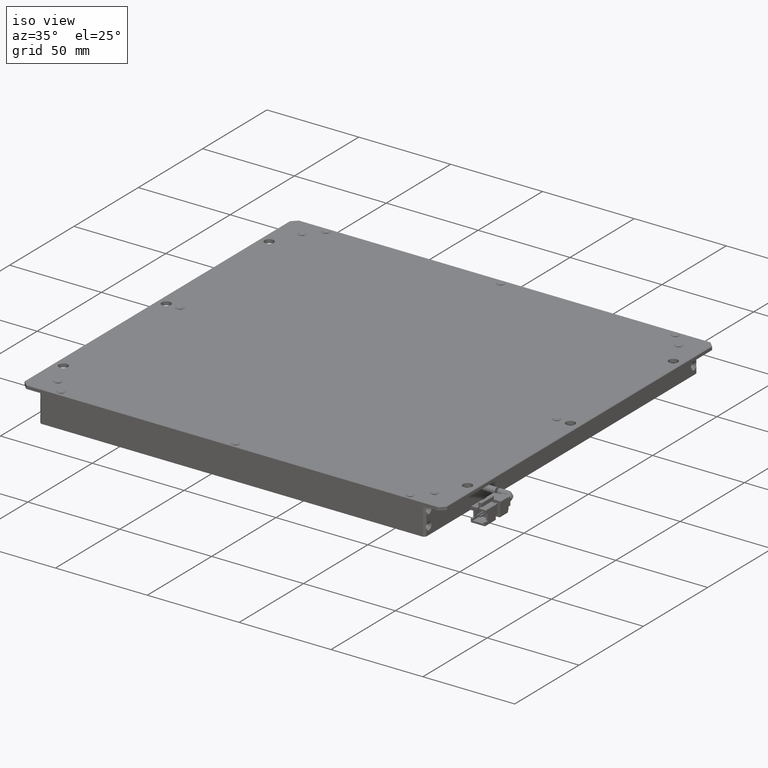
[diagram: clean part render]
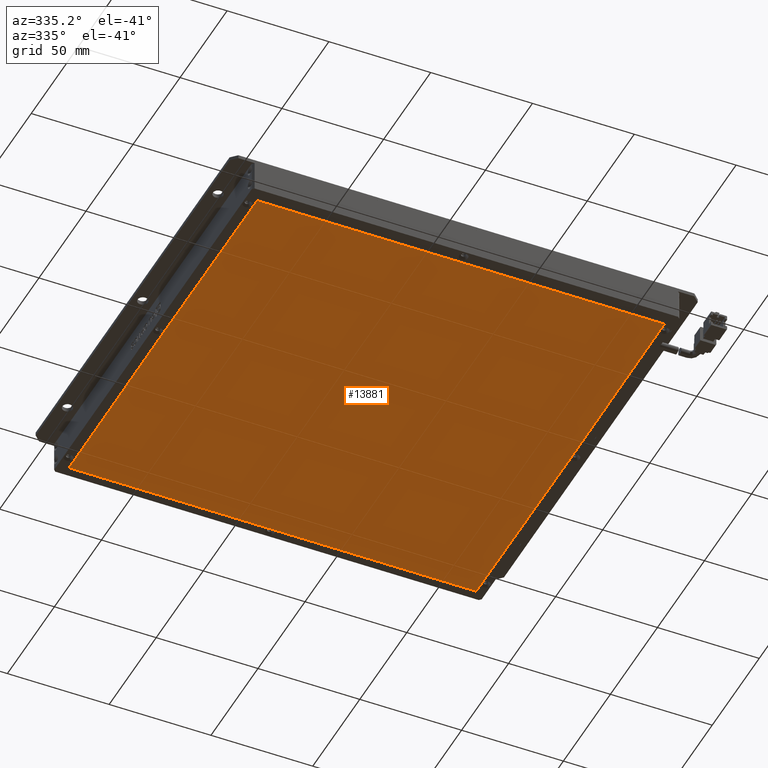
[diagram: tour spotlight — one face highlighted and labeled with its STEP entity id]
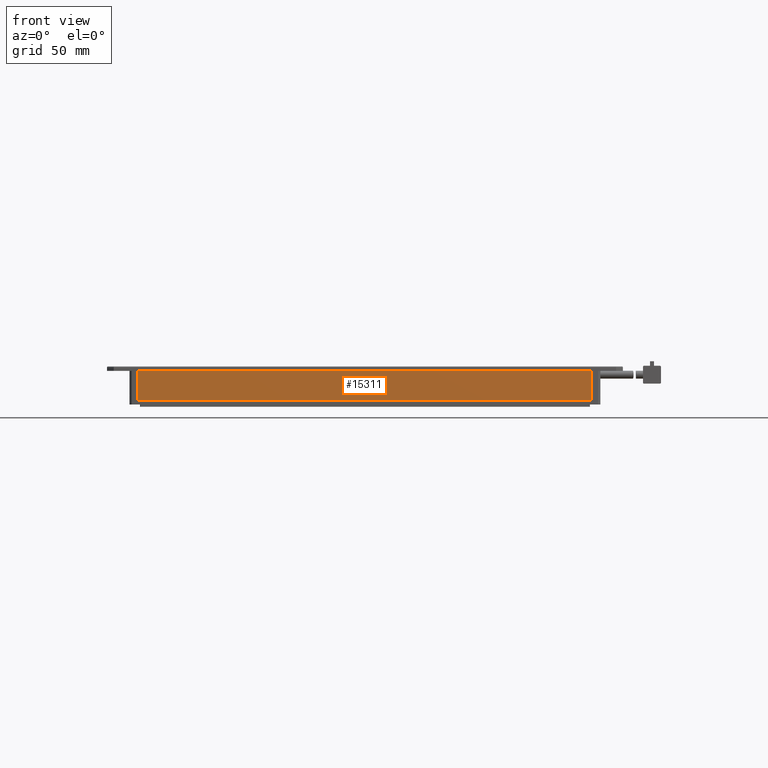
[diagram: tour spotlight — one face highlighted and labeled with its STEP entity id]
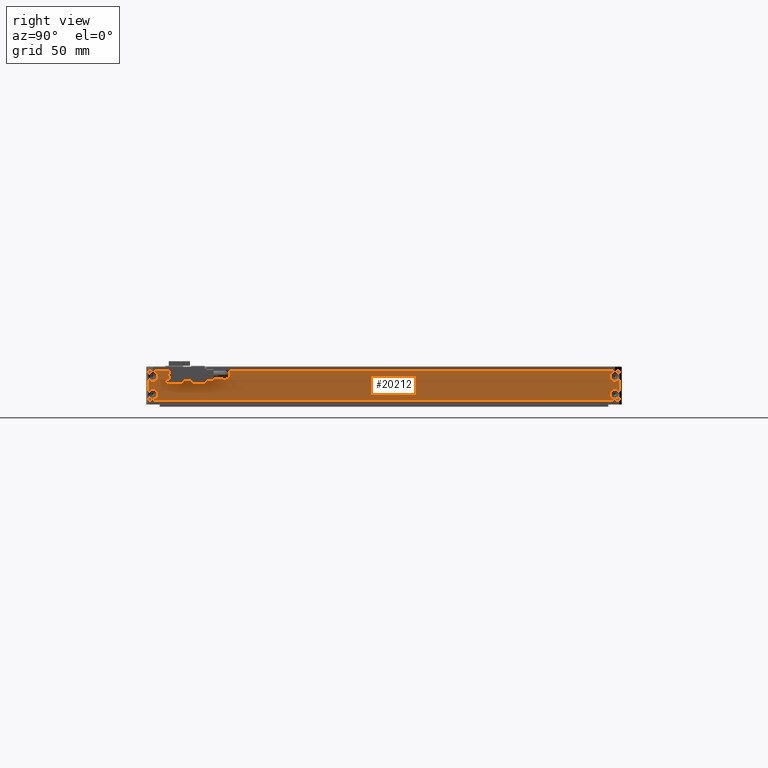
[diagram: tour spotlight — one face highlighted and labeled with its STEP entity id]
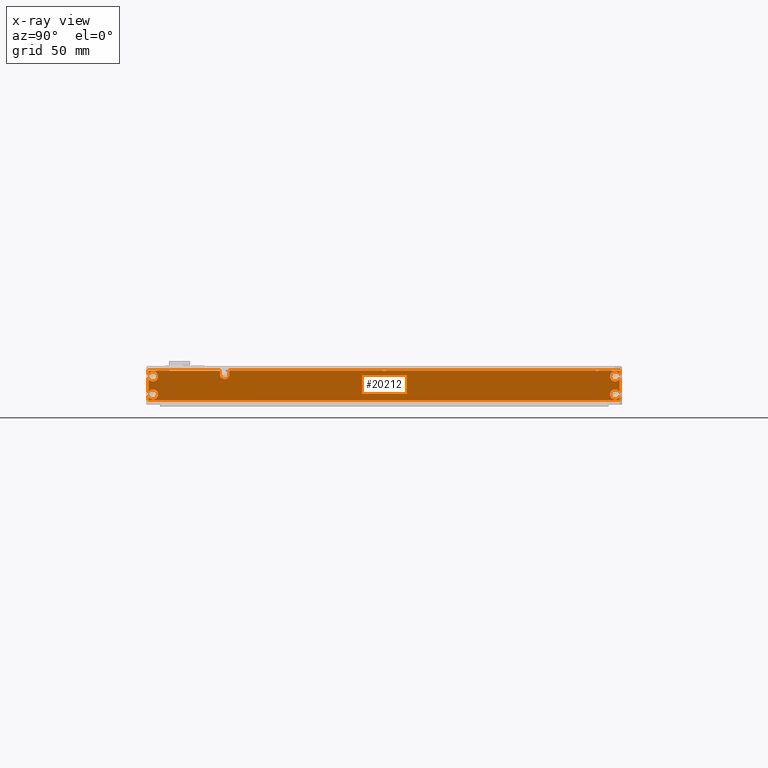
[diagram: x-ray of the same camera — body ghosted, this tour face saturated]
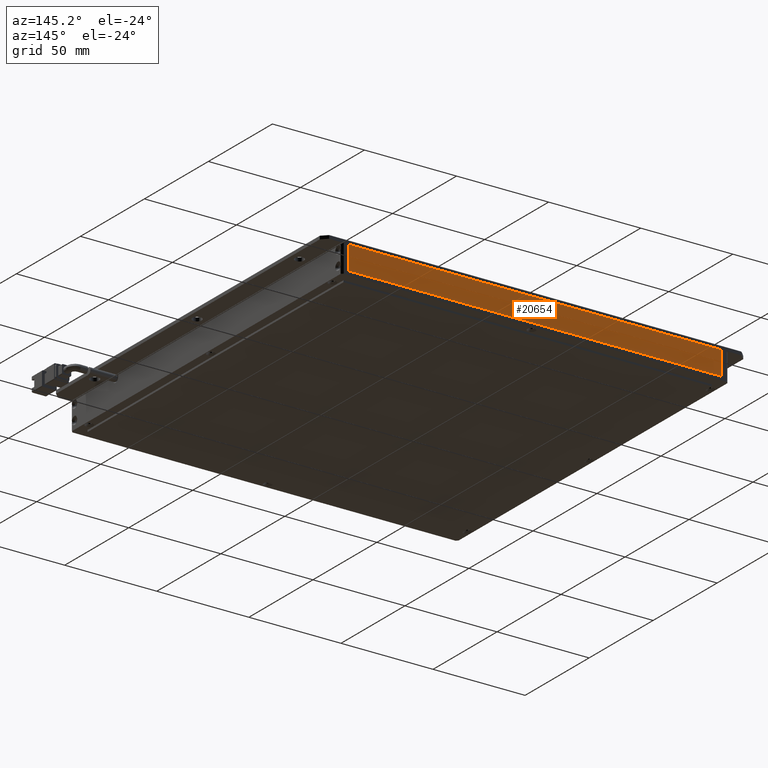
[diagram: tour spotlight — one face highlighted and labeled with its STEP entity id]
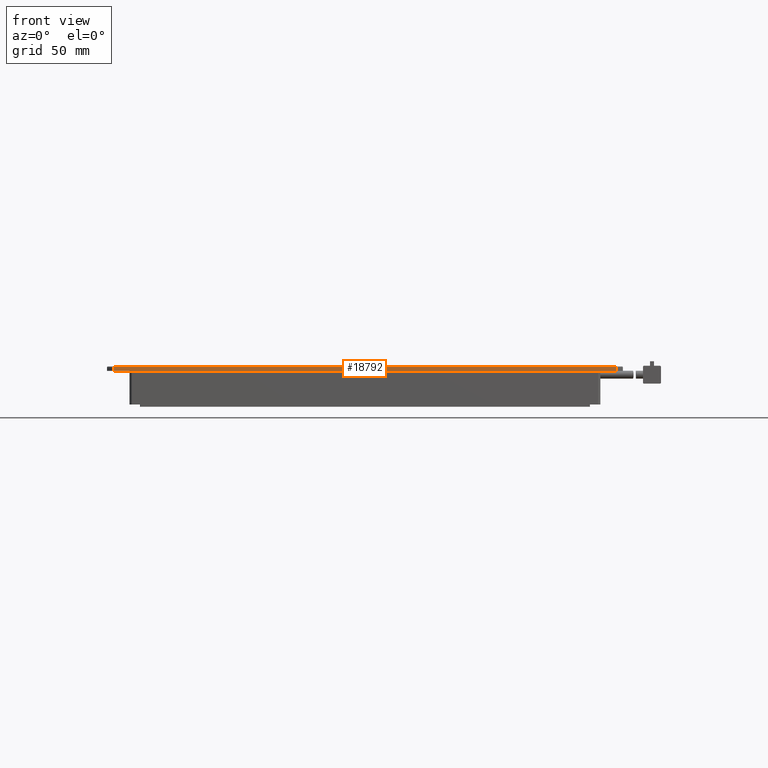
[diagram: tour spotlight — one face highlighted and labeled with its STEP entity id]
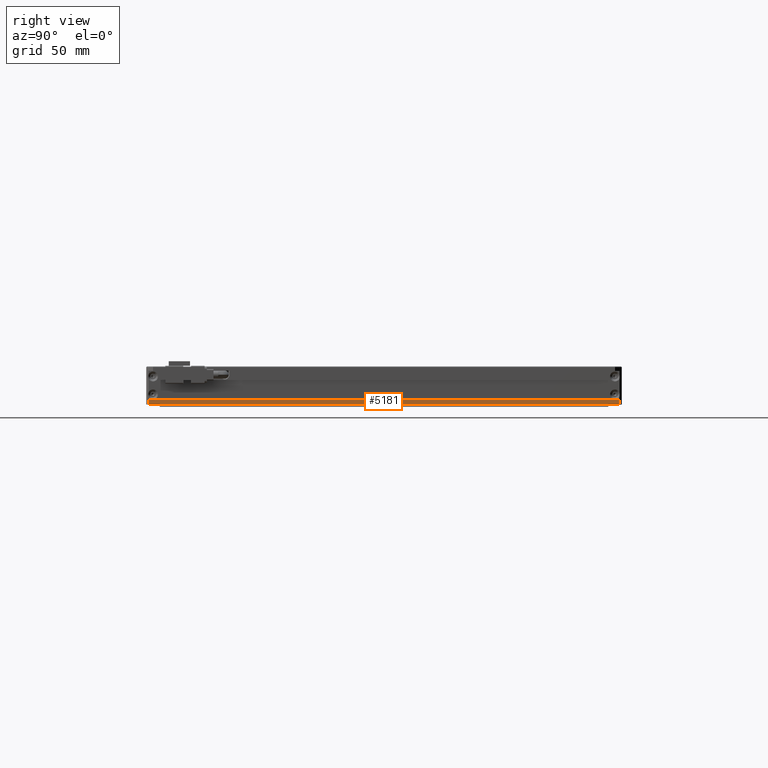
[diagram: tour spotlight — one face highlighted and labeled with its STEP entity id]
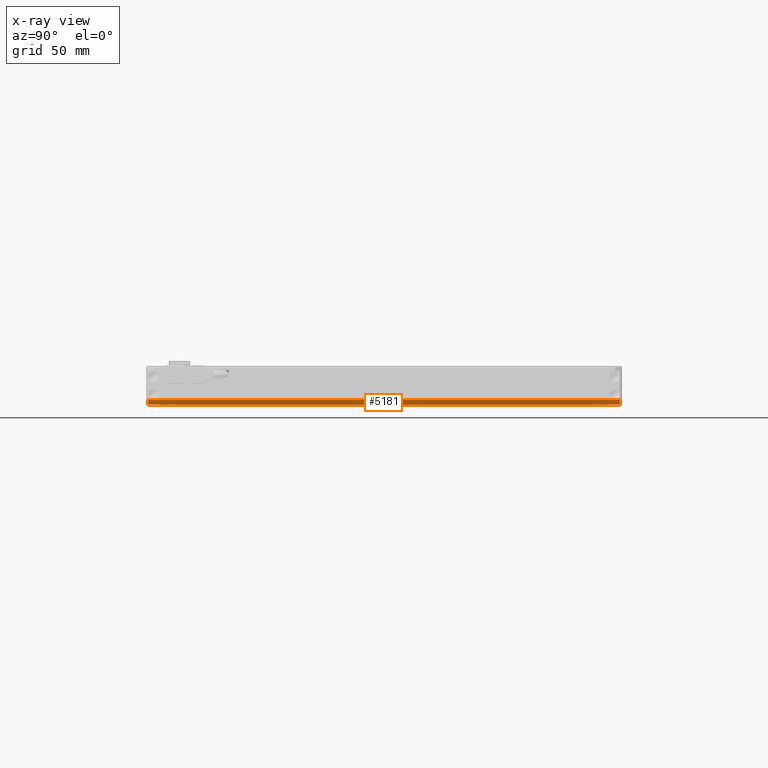
[diagram: x-ray of the same camera — body ghosted, this tour face saturated]
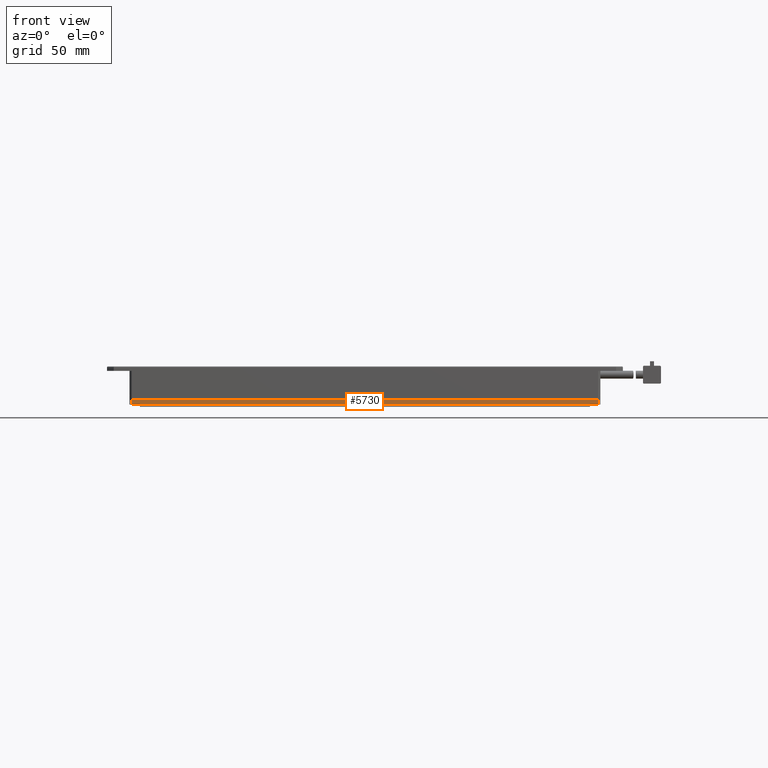
[diagram: tour spotlight — one face highlighted and labeled with its STEP entity id]
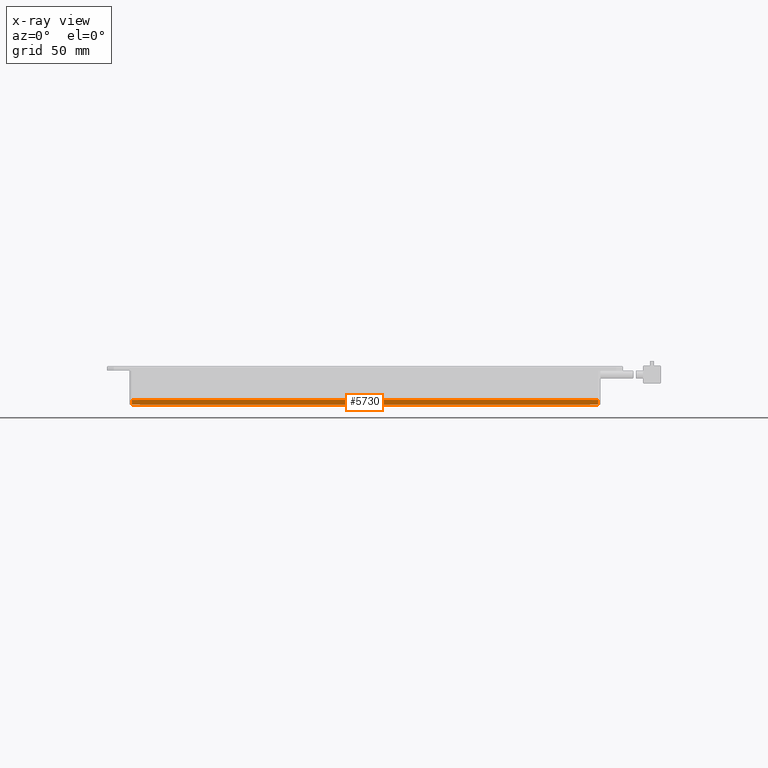
[diagram: x-ray of the same camera — body ghosted, this tour face saturated]
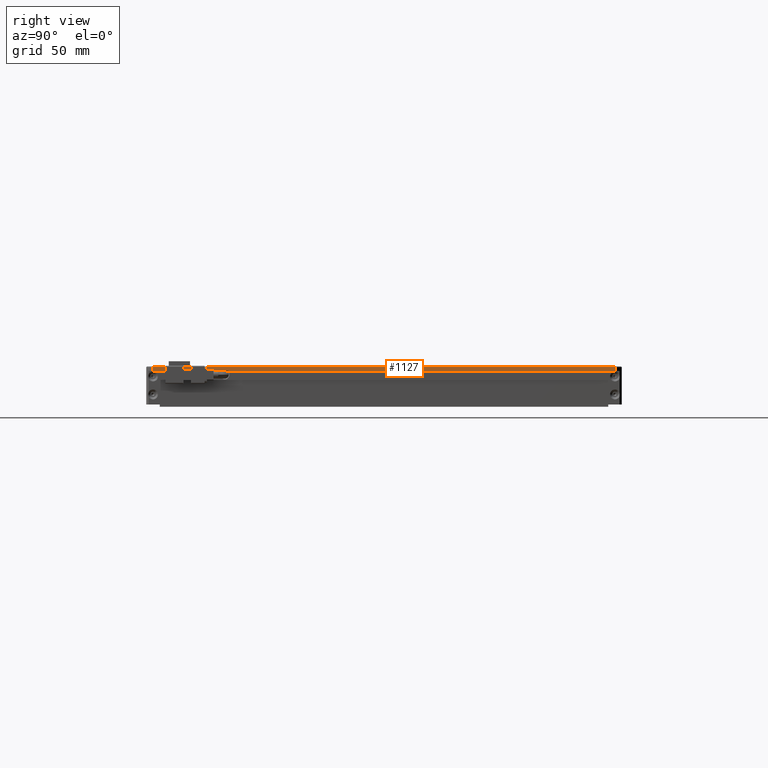
[diagram: tour spotlight — one face highlighted and labeled with its STEP entity id]
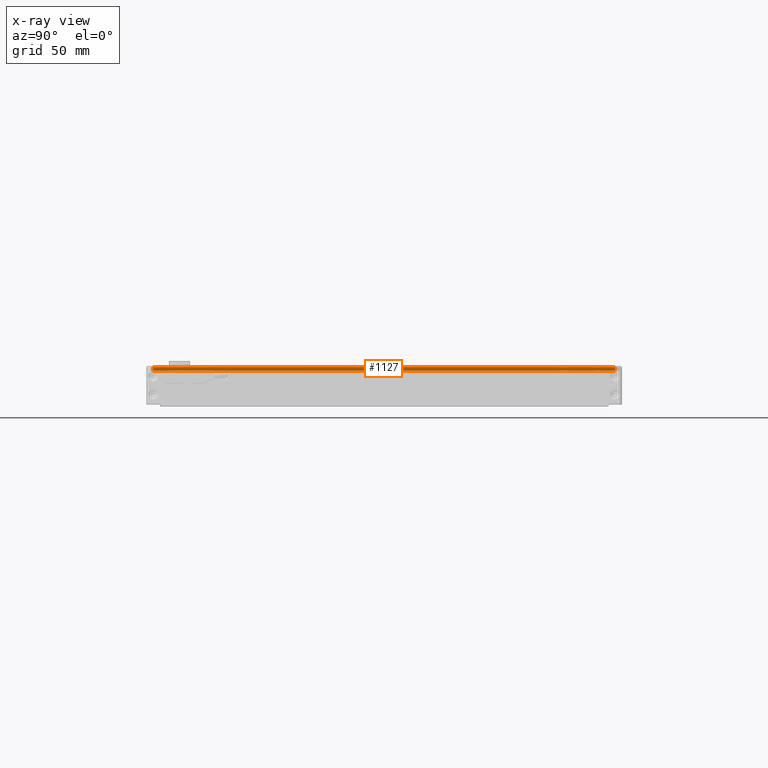
[diagram: x-ray of the same camera — body ghosted, this tour face saturated]
A machine part: a face-by-face anatomy tour. The part has 522 B-rep faces; the first image is the clean iso view, then the 8 largest visible faces are spotlighted one at a time (largest first), each with its STEP entity span.

Face 1 — auxiliary view, entity #13881. In plain terms, the highlighted planar face has unit normal (0, 0, -1).
Definition (entity closure, byte-faithful):
#748 = DIRECTION ( 'NONE',  ( 0.002999986500133816800, 0.9999955000303746300, -0.0000000000000000000 ) ) ;
#1051 = DIRECTION ( 'NONE',  ( -0.002999986500133812500, 0.9999955000303746300, 0.0000000000000000000 ) ) ;
#1287 = VECTOR ( 'NONE', #1051, 1000.000000000000200 ) ;
#1388 = AXIS2_PLACEMENT_3D ( 'NONE', #3017, #16819, #2941 ) ;
#1842 = LINE ( 'NONE', #10003, #18468 ) ;
#2017 = VERTEX_POINT ( 'NONE', #3759 ) ;
#2941 = DIRECTION ( 'NONE',  ( -1.000000000000000000, 0.0000000000000000000, -0.0000000000000000000 ) ) ;
#3017 = CARTESIAN_POINT ( 'NONE',  ( 0.0000000000000000000, 0.0000000000000000000, -16.00000000002364300 ) ) ;
#3759 = CARTESIAN_POINT ( 'NONE',  ( -81.33424941752386400, -133.3787539827808100, -16.00000000002364300 ) ) ;
#4431 = ORIENTED_EDGE ( 'NONE', *, *, #21776, .T. ) ;
#4690 = VERTEX_POINT ( 'NONE', #17969 ) ;
#6302 = CARTESIAN_POINT ( 'NONE',  ( -81.33424941752386400, -133.3787539827808100, -16.00000000002364300 ) ) ;
#6414 = EDGE_CURVE ( 'NONE', #2017, #9636, #19538, .T. ) ;
#6419 = LINE ( 'NONE', #17474, #20843 ) ;
#6910 = DIRECTION ( 'NONE',  ( -1.000000000000000000, -5.551115123125782700E-016, 0.0000000000000000000 ) ) ;
#8307 = EDGE_CURVE ( 'NONE', #21700, #4690, #13935, .T. ) ;
#8357 = DIRECTION ( 'NONE',  ( 1.000000000000000000, 6.938893903907228400E-017, -0.0000000000000000000 ) ) ;
#9072 = EDGE_CURVE ( 'NONE', #15631, #11918, #1842, .T. ) ;
#9636 = VERTEX_POINT ( 'NONE', #11572 ) ;
#9914 = PLANE ( 'NONE',  #1388 ) ;
#10003 = CARTESIAN_POINT ( 'NONE',  ( 118.6657505824761500, 66.62124601721919200, -16.00000000002364300 ) ) ;
#10243 = ORIENTED_EDGE ( 'NONE', *, *, #13722, .T. ) ;
#10267 = VECTOR ( 'NONE', #19476, 1000.000000000000200 ) ;
#10704 = FACE_OUTER_BOUND ( 'NONE', #18050, .T. ) ;
#10982 = VECTOR ( 'NONE', #748, 1000.000000000000100 ) ;
#11572 = CARTESIAN_POINT ( 'NONE',  ( -81.63424941752812500, -33.37875398278074400, -16.00000000002364300 ) ) ;
#11893 = LINE ( 'NONE', #15959, #10267 ) ;
#11918 = VERTEX_POINT ( 'NONE', #17717 ) ;
#13300 = CARTESIAN_POINT ( 'NONE',  ( -81.33424941752386400, 66.62124601721917800, -16.00000000002364300 ) ) ;
#13722 = EDGE_CURVE ( 'NONE', #9636, #15631, #20743, .T. ) ;
#13881 = ADVANCED_FACE ( 'NONE', ( #10704 ), #9914, .T. ) ;
#13935 = LINE ( 'NONE', #19379, #20714 ) ;
#14157 = CARTESIAN_POINT ( 'NONE',  ( 118.9657505824804200, -33.37875398278068700, -16.00000000002364300 ) ) ;
#15365 = ORIENTED_EDGE ( 'NONE', *, *, #9072, .T. ) ;
#15631 = VERTEX_POINT ( 'NONE', #13300 ) ;
#15959 = CARTESIAN_POINT ( 'NONE',  ( 118.6657505824761500, 66.62124601721919200, -16.00000000002364300 ) ) ;
#16013 = DIRECTION ( 'NONE',  ( -0.002999986500133813800, -0.9999955000303746300, -0.0000000000000000000 ) ) ;
#16819 = DIRECTION ( 'NONE',  ( 0.0000000000000000000, 0.0000000000000000000, -1.000000000000000000 ) ) ;
#17284 = ORIENTED_EDGE ( 'NONE', *, *, #8307, .T. ) ;
#17474 = CARTESIAN_POINT ( 'NONE',  ( 118.6657505824761500, -133.3787539827806900, -16.00000000002364300 ) ) ;
#17717 = CARTESIAN_POINT ( 'NONE',  ( 118.6657505824761500, 66.62124601721919200, -16.00000000002364300 ) ) ;
#17913 = ORIENTED_EDGE ( 'NONE', *, *, #18400, .T. ) ;
#17969 = CARTESIAN_POINT ( 'NONE',  ( 118.6657505824761500, -133.3787539827806900, -16.00000000002364300 ) ) ;
#18050 = EDGE_LOOP ( 'NONE', ( #10243, #15365, #4431, #17284, #17913, #20233 ) ) ;
#18123 = CARTESIAN_POINT ( 'NONE',  ( -81.33424941752386400, 66.62124601721917800, -16.00000000002364300 ) ) ;
#18400 = EDGE_CURVE ( 'NONE', #4690, #2017, #6419, .T. ) ;
#18468 = VECTOR ( 'NONE', #8357, 1000.000000000000000 ) ;
#19379 = CARTESIAN_POINT ( 'NONE',  ( 118.6657505824761500, -133.3787539827806900, -16.00000000002364300 ) ) ;
#19476 = DIRECTION ( 'NONE',  ( 0.002999986500133818500, -0.9999955000303746300, 0.0000000000000000000 ) ) ;
#19538 = LINE ( 'NONE', #6302, #1287 ) ;
#20233 = ORIENTED_EDGE ( 'NONE', *, *, #6414, .T. ) ;
#20714 = VECTOR ( 'NONE', #16013, 1000.000000000000200 ) ;
#20743 = LINE ( 'NONE', #18123, #10982 ) ;
#20843 = VECTOR ( 'NONE', #6910, 1000.000000000000000 ) ;
#21700 = VERTEX_POINT ( 'NONE', #14157 ) ;
#21776 = EDGE_CURVE ( 'NONE', #11918, #21700, #11893, .T. ) ;

Face 2 — front view, entity #15311. In plain terms, the highlighted planar face has unit normal (-0, 1, 0).
Definition (entity closure, byte-faithful):
#91 = ORIENTED_EDGE ( 'NONE', *, *, #19592, .F. ) ;
#335 = EDGE_LOOP ( 'NONE', ( #91, #18693, #17694, #1340 ) ) ;
#486 = DIRECTION ( 'NONE',  ( -1.243375699538492300E-016, -1.545983130202835100E-032, 1.000000000000000000 ) ) ;
#1340 = ORIENTED_EDGE ( 'NONE', *, *, #10786, .F. ) ;
#1426 = CARTESIAN_POINT ( 'NONE',  ( 119.8157505824761400, -139.3787539827808600, -13.00000000002364900 ) ) ;
#1506 = CARTESIAN_POINT ( 'NONE',  ( 119.8157505824761400, -139.3787539827808600, -2.364081153061192700E-011 ) ) ;
#1997 = EDGE_CURVE ( 'NONE', #4922, #18290, #9721, .T. ) ;
#2987 = LINE ( 'NONE', #5684, #15258 ) ;
#3705 = DIRECTION ( 'NONE',  ( 1.000000000000000000, 1.243375699538492300E-016, 1.243375699538492300E-016 ) ) ;
#4364 = VECTOR ( 'NONE', #486, 1000.000000000000000 ) ;
#4922 = VERTEX_POINT ( 'NONE', #1506 ) ;
#5299 = CARTESIAN_POINT ( 'NONE',  ( 119.8157505824761400, -139.3787539827808600, -6.500000000023631800 ) ) ;
#5506 = CARTESIAN_POINT ( 'NONE',  ( -82.48424941752387000, -139.3787539827808600, -6.500000000023656600 ) ) ;
#5539 = CARTESIAN_POINT ( 'NONE',  ( -82.48424941752387000, -139.3787539827808600, -13.00000000002365200 ) ) ;
#5684 = CARTESIAN_POINT ( 'NONE',  ( 18.66575058247610400, -139.3787539827808600, -13.00000000002365900 ) ) ;
#7874 = VERTEX_POINT ( 'NONE', #5539 ) ;
#7978 = VERTEX_POINT ( 'NONE', #9678 ) ;
#8803 = DIRECTION ( 'NONE',  ( 1.000000000000000000, 1.243375699538492300E-016, 1.243375699538492300E-016 ) ) ;
#8963 = LINE ( 'NONE', #14343, #15468 ) ;
#8992 = DIRECTION ( 'NONE',  ( 1.243375699538492300E-016, 1.545983130202835100E-032, -1.000000000000000000 ) ) ;
#9061 = LINE ( 'NONE', #5506, #4364 ) ;
#9678 = CARTESIAN_POINT ( 'NONE',  ( -82.48424941752387000, -139.3787539827808600, -2.364688306277784600E-011 ) ) ;
#9721 = LINE ( 'NONE', #5299, #22211 ) ;
#10786 = EDGE_CURVE ( 'NONE', #7874, #7978, #9061, .T. ) ;
#10961 = DIRECTION ( 'NONE',  ( -1.000000000000000000, -1.243375699538492300E-016, -1.243375699538492300E-016 ) ) ;
#12245 = AXIS2_PLACEMENT_3D ( 'NONE', #14159, #19252, #3705 ) ;
#14078 = PLANE ( 'NONE',  #12245 ) ;
#14159 = CARTESIAN_POINT ( 'NONE',  ( 18.66575058247610400, -139.3787539827808600, -6.500000000023645100 ) ) ;
#14228 = FACE_OUTER_BOUND ( 'NONE', #335, .T. ) ;
#14343 = CARTESIAN_POINT ( 'NONE',  ( 18.66575058247610400, -139.3787539827808600, -2.363473999844600800E-011 ) ) ;
#15258 = VECTOR ( 'NONE', #10961, 1000.000000000000000 ) ;
#15311 = ADVANCED_FACE ( 'NONE', ( #14228 ), #14078, .F. ) ;
#15468 = VECTOR ( 'NONE', #8803, 1000.000000000000000 ) ;
#16428 = EDGE_CURVE ( 'NONE', #7978, #4922, #8963, .T. ) ;
#17694 = ORIENTED_EDGE ( 'NONE', *, *, #16428, .F. ) ;
#18290 = VERTEX_POINT ( 'NONE', #1426 ) ;
#18693 = ORIENTED_EDGE ( 'NONE', *, *, #1997, .F. ) ;
#19252 = DIRECTION ( 'NONE',  ( -1.243375699538492300E-016, 1.000000000000000000, 0.0000000000000000000 ) ) ;
#19592 = EDGE_CURVE ( 'NONE', #18290, #7874, #2987, .T. ) ;
#22211 = VECTOR ( 'NONE', #8992, 1000.000000000000000 ) ;

Face 3 — right view, entity #20212. An x-ray twin of the same camera follows (body ghosted, this face saturated) — the face is partly hidden behind the body. In plain terms, the highlighted planar face has unit normal (1, 0, 0).
Definition (entity closure, byte-faithful):
#54 = CARTESIAN_POINT ( 'NONE',  ( 123.6657505824781400, 71.62124601721910700, -9.583484861012650000 ) ) ;
#134 = CARTESIAN_POINT ( 'NONE',  ( 123.6657505824761400, -106.4787539827807900, -6.500000000023630900 ) ) ;
#227 = CARTESIAN_POINT ( 'NONE',  ( 123.6657505824761500, -138.3787539827808400, -6.500000000023630900 ) ) ;
#284 = EDGE_CURVE ( 'NONE', #2123, #21424, #13120, .T. ) ;
#661 = VERTEX_POINT ( 'NONE', #9431 ) ;
#671 = DIRECTION ( 'NONE',  ( 0.0000000000000000000, -1.000000000000000000, 3.942553354448312000E-015 ) ) ;
#707 = CARTESIAN_POINT ( 'NONE',  ( 123.6657505824761500, -138.3787539827808400, -2.364254625408790400E-011 ) ) ;
#783 = LINE ( 'NONE', #16973, #3746 ) ;
#785 = LINE ( 'NONE', #11807, #9534 ) ;
#826 = CARTESIAN_POINT ( 'NONE',  ( 123.6657505824738800, -138.3787539827808400, -11.41651513904448500 ) ) ;
#931 = CARTESIAN_POINT ( 'NONE',  ( 123.6657505824761500, -138.3787539827808400, -6.500000000023630900 ) ) ;
#1026 = LINE ( 'NONE', #227, #20369 ) ;
#1218 = VECTOR ( 'NONE', #7134, 1000.000000000000000 ) ;
#1376 = CARTESIAN_POINT ( 'NONE',  ( 123.6657505824738800, -138.3787539827808400, -9.583484861002777000 ) ) ;
#1440 = ORIENTED_EDGE ( 'NONE', *, *, #20371, .T. ) ;
#1715 = DIRECTION ( 'NONE',  ( 0.0000000000000000000, -1.000000000000000000, 0.0000000000000000000 ) ) ;
#1718 = CARTESIAN_POINT ( 'NONE',  ( 123.6657505824716000, -136.3787539827808100, -10.50000000002363100 ) ) ;
#1875 = DIRECTION ( 'NONE',  ( -1.000000000000000000, -1.309225264888156400E-016, -0.0000000000000000000 ) ) ;
#1958 = VERTEX_POINT ( 'NONE', #54 ) ;
#2084 = EDGE_CURVE ( 'NONE', #21128, #11957, #12456, .T. ) ;
#2123 = VERTEX_POINT ( 'NONE', #9223 ) ;
#2151 = CIRCLE ( 'NONE', #14470, 2.200000000024793200 ) ;
#2529 = CIRCLE ( 'NONE', #5151, 2.200000000007598500 ) ;
#2750 = CARTESIAN_POINT ( 'NONE',  ( 123.6657505824716000, -134.1787539827560400, -10.50000000002363100 ) ) ;
#3746 = VECTOR ( 'NONE', #4936, 1000.000000000000000 ) ;
#3919 = CARTESIAN_POINT ( 'NONE',  ( 123.6657505824761400, -33.37875398278077200, -13.00000000002364500 ) ) ;
#4517 = CARTESIAN_POINT ( 'NONE',  ( 123.6657505824761400, -33.37875398278077200, -2.364254625408790400E-011 ) ) ;
#4527 = CARTESIAN_POINT ( 'NONE',  ( 123.6657505824716000, -136.3787539827808100, -2.500000000023630900 ) ) ;
#4878 = CARTESIAN_POINT ( 'NONE',  ( 123.6657505824738500, 71.62124601721910700, -3.416515139024304500 ) ) ;
#4936 = DIRECTION ( 'NONE',  ( 1.309225264888156400E-016, -1.000000000000000000, 2.751886685293596300E-019 ) ) ;
#5151 = AXIS2_PLACEMENT_3D ( 'NONE', #9449, #5769, #21577 ) ;
#5476 = CARTESIAN_POINT ( 'NONE',  ( 123.6657505824715700, 67.42124601721168600, -2.500000000023630900 ) ) ;
#5769 = DIRECTION ( 'NONE',  ( -1.000000000000000000, -1.309225264888156400E-016, -0.0000000000000000000 ) ) ;
#5793 = DIRECTION ( 'NONE',  ( -1.000000000000000000, -1.309225264888156400E-016, -0.0000000000000000000 ) ) ;
#5801 = ORIENTED_EDGE ( 'NONE', *, *, #6276, .T. ) ;
#5811 = ORIENTED_EDGE ( 'NONE', *, *, #284, .T. ) ;
#5847 = LINE ( 'NONE', #21253, #1218 ) ;
#5927 = CARTESIAN_POINT ( 'NONE',  ( 123.6657505824761200, 71.62124601721909300, -2.361912748716221700E-011 ) ) ;
#6099 = EDGE_CURVE ( 'NONE', #11845, #8287, #783, .T. ) ;
#6191 = DIRECTION ( 'NONE',  ( -3.602839574495699400E-035, 2.751886685293596300E-019, 1.000000000000000000 ) ) ;
#6196 = CIRCLE ( 'NONE', #19499, 2.200000000024793200 ) ;
#6221 = CARTESIAN_POINT ( 'NONE',  ( 123.6657505824738800, -138.3787539827808400, -1.583484861002775600 ) ) ;
#6222 = DIRECTION ( 'NONE',  ( -1.000000000000000000, -1.309225264888156400E-016, -0.0000000000000000000 ) ) ;
#6276 = EDGE_CURVE ( 'NONE', #17764, #8041, #1026, .T. ) ;
#6365 = CARTESIAN_POINT ( 'NONE',  ( 123.6657505824761500, -138.3787539827808400, -6.500000000023630900 ) ) ;
#6407 = CARTESIAN_POINT ( 'NONE',  ( 123.6657505824716000, -136.3787539827808100, -2.500000000023630900 ) ) ;
#6497 = VECTOR ( 'NONE', #16423, 1000.000000000000000 ) ;
#7056 = CARTESIAN_POINT ( 'NONE',  ( 123.6657505824715700, 69.62124601721927800, -10.50000000002363100 ) ) ;
#7134 = DIRECTION ( 'NONE',  ( 3.602839574495699400E-035, -2.751886685293596300E-019, -1.000000000000000000 ) ) ;
#7441 = VECTOR ( 'NONE', #18563, 1000.000000000000000 ) ;
#7577 = VERTEX_POINT ( 'NONE', #1376 ) ;
#7642 = FACE_OUTER_BOUND ( 'NONE', #8262, .T. ) ;
#8041 = VERTEX_POINT ( 'NONE', #6221 ) ;
#8143 = EDGE_CURVE ( 'NONE', #21702, #7577, #14512, .T. ) ;
#8262 = EDGE_LOOP ( 'NONE', ( #14600, #1440, #12271, #13750, #11054, #5801, #8896, #20076, #19982, #15605, #21535, #15557, #20561, #11547, #5811, #10977, #14262, #14389, #12657, #16295 ) ) ;
#8287 = VERTEX_POINT ( 'NONE', #9143 ) ;
#8323 = DIRECTION ( 'NONE',  ( 0.0000000000000000000, -1.000000000000000000, 3.548298019003481000E-015 ) ) ;
#8774 = CARTESIAN_POINT ( 'NONE',  ( 123.6657505824715700, 69.62124601721927800, -2.500000000023630900 ) ) ;
#8808 = VECTOR ( 'NONE', #13303, 1000.000000000000000 ) ;
#8840 = CARTESIAN_POINT ( 'NONE',  ( 123.6657505824761400, -106.4787539827807900, -2.364254625408790400E-011 ) ) ;
#8866 = EDGE_CURVE ( 'NONE', #8041, #18862, #6196, .T. ) ;
#8896 = ORIENTED_EDGE ( 'NONE', *, *, #8866, .T. ) ;
#8901 = DIRECTION ( 'NONE',  ( 0.0000000000000000000, -1.000000000000000000, 4.731064025337974900E-015 ) ) ;
#9143 = CARTESIAN_POINT ( 'NONE',  ( 123.6657505824761400, -102.2787539827808300, -2.362866846628008900E-011 ) ) ;
#9145 = DIRECTION ( 'NONE',  ( 1.309225264888156400E-016, -1.000000000000000000, 2.751886685293596300E-019 ) ) ;
#9190 = CARTESIAN_POINT ( 'NONE',  ( 123.6657505824738800, -106.4787539827785000, -1.700000000023617500 ) ) ;
#9223 = CARTESIAN_POINT ( 'NONE',  ( 123.6657505824738500, 71.62124601721907900, -11.41651513902436800 ) ) ;
#9272 = AXIS2_PLACEMENT_3D ( 'NONE', #21419, #12692, #14436 ) ;
#9335 = DIRECTION ( 'NONE',  ( -1.000000000000000000, -1.309225264888156400E-016, -0.0000000000000000000 ) ) ;
#9431 = CARTESIAN_POINT ( 'NONE',  ( 123.6657505824761500, -138.3787539827808400, -13.00000000002364900 ) ) ;
#9449 = CARTESIAN_POINT ( 'NONE',  ( 123.6657505824715700, 69.62124601721927800, -10.50000000002363100 ) ) ;
#9456 = CARTESIAN_POINT ( 'NONE',  ( 123.6657505824761200, 71.62124601721906500, -13.00000000002363800 ) ) ;
#9531 = VERTEX_POINT ( 'NONE', #18111 ) ;
#9534 = VECTOR ( 'NONE', #20376, 1000.000000000000000 ) ;
#9964 = CIRCLE ( 'NONE', #20875, 2.200000000024793200 ) ;
#10008 = VERTEX_POINT ( 'NONE', #826 ) ;
#10184 = AXIS2_PLACEMENT_3D ( 'NONE', #4527, #18714, #8323 ) ;
#10331 = LINE ( 'NONE', #14757, #6497 ) ;
#10414 = EDGE_CURVE ( 'NONE', #11957, #17764, #19138, .T. ) ;
#10662 = VECTOR ( 'NONE', #16655, 1000.000000000000000 ) ;
#10977 = ORIENTED_EDGE ( 'NONE', *, *, #18022, .T. ) ;
#11054 = ORIENTED_EDGE ( 'NONE', *, *, #10414, .T. ) ;
#11315 = LINE ( 'NONE', #931, #15629 ) ;
#11430 = EDGE_CURVE ( 'NONE', #7577, #15070, #2151, .T. ) ;
#11547 = ORIENTED_EDGE ( 'NONE', *, *, #11701, .T. ) ;
#11701 = EDGE_CURVE ( 'NONE', #11935, #2123, #785, .T. ) ;
#11713 = CARTESIAN_POINT ( 'NONE',  ( 123.6657505824715700, 69.62124601721927800, -2.500000000023630900 ) ) ;
#11807 = CARTESIAN_POINT ( 'NONE',  ( 123.6657505824761200, 71.62124601721905000, -6.500000000023630900 ) ) ;
#11845 = VERTEX_POINT ( 'NONE', #5927 ) ;
#11935 = VERTEX_POINT ( 'NONE', #9456 ) ;
#11957 = VERTEX_POINT ( 'NONE', #8840 ) ;
#11960 = EDGE_CURVE ( 'NONE', #1958, #18732, #10331, .T. ) ;
#12271 = ORIENTED_EDGE ( 'NONE', *, *, #17617, .T. ) ;
#12456 = LINE ( 'NONE', #134, #21123 ) ;
#12485 = EDGE_CURVE ( 'NONE', #13716, #14840, #15686, .T. ) ;
#12503 = DIRECTION ( 'NONE',  ( -1.000000000000000000, -1.309225264888156400E-016, -0.0000000000000000000 ) ) ;
#12657 = ORIENTED_EDGE ( 'NONE', *, *, #12485, .T. ) ;
#12692 = DIRECTION ( 'NONE',  ( -1.000000000000000000, -1.309225264888156400E-016, -0.0000000000000000000 ) ) ;
#12802 = AXIS2_PLACEMENT_3D ( 'NONE', #19744, #19531, #9145 ) ;
#13085 = EDGE_CURVE ( 'NONE', #11845, #14840, #5847, .T. ) ;
#13120 = CIRCLE ( 'NONE', #19215, 2.200000000007598500 ) ;
#13303 = DIRECTION ( 'NONE',  ( 1.309225264888156400E-016, -1.000000000000000000, 2.751886685293596300E-019 ) ) ;
#13360 = AXIS2_PLACEMENT_3D ( 'NONE', #11713, #6222, #20210 ) ;
#13716 = VERTEX_POINT ( 'NONE', #5476 ) ;
#13750 = ORIENTED_EDGE ( 'NONE', *, *, #2084, .T. ) ;
#13904 = AXIS2_PLACEMENT_3D ( 'NONE', #8774, #12503, #17428 ) ;
#14262 = ORIENTED_EDGE ( 'NONE', *, *, #11960, .T. ) ;
#14389 = ORIENTED_EDGE ( 'NONE', *, *, #14400, .T. ) ;
#14400 = EDGE_CURVE ( 'NONE', #18732, #13716, #21529, .T. ) ;
#14436 = DIRECTION ( 'NONE',  ( 0.0000000000000000000, -1.000000000000000000, 0.0000000000000000000 ) ) ;
#14442 = PLANE ( 'NONE',  #12802 ) ;
#14450 = CIRCLE ( 'NONE', #10184, 2.200000000024793200 ) ;
#14470 = AXIS2_PLACEMENT_3D ( 'NONE', #15980, #5793, #671 ) ;
#14512 = LINE ( 'NONE', #6365, #7441 ) ;
#14600 = ORIENTED_EDGE ( 'NONE', *, *, #6099, .T. ) ;
#14757 = CARTESIAN_POINT ( 'NONE',  ( 123.6657505824761200, 71.62124601721910700, -6.500000000023630900 ) ) ;
#14840 = VERTEX_POINT ( 'NONE', #17706 ) ;
#15070 = VERTEX_POINT ( 'NONE', #2750 ) ;
#15557 = ORIENTED_EDGE ( 'NONE', *, *, #17659, .F. ) ;
#15605 = ORIENTED_EDGE ( 'NONE', *, *, #11430, .T. ) ;
#15629 = VECTOR ( 'NONE', #6191, 1000.000000000000000 ) ;
#15686 = CIRCLE ( 'NONE', #13904, 2.200000000007598500 ) ;
#15980 = CARTESIAN_POINT ( 'NONE',  ( 123.6657505824716000, -136.3787539827808100, -10.50000000002363100 ) ) ;
#16295 = ORIENTED_EDGE ( 'NONE', *, *, #13085, .F. ) ;
#16423 = DIRECTION ( 'NONE',  ( -3.602839574495699400E-035, 2.751886685293596300E-019, 1.000000000000000000 ) ) ;
#16655 = DIRECTION ( 'NONE',  ( -1.309225264888156400E-016, 1.000000000000000000, -2.751886685293596300E-019 ) ) ;
#16973 = CARTESIAN_POINT ( 'NONE',  ( 123.6657505824761400, -33.37875398278077200, -2.362086221063819400E-011 ) ) ;
#17428 = DIRECTION ( 'NONE',  ( 0.0000000000000000000, -1.000000000000000000, 0.0000000000000000000 ) ) ;
#17487 = EDGE_CURVE ( 'NONE', #15070, #10008, #9964, .T. ) ;
#17525 = CARTESIAN_POINT ( 'NONE',  ( 123.6657505824716000, -134.1787539827560400, -2.500000000023631300 ) ) ;
#17574 = CARTESIAN_POINT ( 'NONE',  ( 123.6657505824738800, -138.3787539827808400, -3.416515139044482600 ) ) ;
#17617 = EDGE_CURVE ( 'NONE', #9531, #21128, #18645, .T. ) ;
#17659 = EDGE_CURVE ( 'NONE', #661, #10008, #11315, .T. ) ;
#17706 = CARTESIAN_POINT ( 'NONE',  ( 123.6657505824781400, 71.62124601721907900, -1.583484861012602900 ) ) ;
#17764 = VERTEX_POINT ( 'NONE', #707 ) ;
#18022 = EDGE_CURVE ( 'NONE', #21424, #1958, #2529, .T. ) ;
#18111 = CARTESIAN_POINT ( 'NONE',  ( 123.6657505824738600, -102.2787539827831000, -1.700000000023617500 ) ) ;
#18268 = DIRECTION ( 'NONE',  ( 3.602839574495699400E-035, -2.751886685293596300E-019, -1.000000000000000000 ) ) ;
#18516 = LINE ( 'NONE', #20478, #20404 ) ;
#18563 = DIRECTION ( 'NONE',  ( 3.602839574495699400E-035, -2.751886685293596300E-019, -1.000000000000000000 ) ) ;
#18645 = CIRCLE ( 'NONE', #9272, 2.100000000010787500 ) ;
#18714 = DIRECTION ( 'NONE',  ( -1.000000000000000000, -1.309225264888156400E-016, -0.0000000000000000000 ) ) ;
#18732 = VERTEX_POINT ( 'NONE', #4878 ) ;
#18862 = VERTEX_POINT ( 'NONE', #17525 ) ;
#19138 = LINE ( 'NONE', #4517, #8808 ) ;
#19215 = AXIS2_PLACEMENT_3D ( 'NONE', #7056, #1875, #1715 ) ;
#19297 = DIRECTION ( 'NONE',  ( -1.000000000000000000, -1.309225264888156400E-016, -0.0000000000000000000 ) ) ;
#19499 = AXIS2_PLACEMENT_3D ( 'NONE', #6407, #9335, #21518 ) ;
#19531 = DIRECTION ( 'NONE',  ( 1.000000000000000000, 1.309225264888156400E-016, 0.0000000000000000000 ) ) ;
#19612 = EDGE_CURVE ( 'NONE', #661, #11935, #20155, .T. ) ;
#19744 = CARTESIAN_POINT ( 'NONE',  ( 123.6657505824761400, -33.37875398278077200, -6.500000000023630900 ) ) ;
#19783 = EDGE_CURVE ( 'NONE', #18862, #21702, #14450, .T. ) ;
#19982 = ORIENTED_EDGE ( 'NONE', *, *, #8143, .T. ) ;
#20076 = ORIENTED_EDGE ( 'NONE', *, *, #19783, .T. ) ;
#20155 = LINE ( 'NONE', #3919, #10662 ) ;
#20210 = DIRECTION ( 'NONE',  ( 0.0000000000000000000, -1.000000000000000000, 0.0000000000000000000 ) ) ;
#20212 = ADVANCED_FACE ( 'NONE', ( #7642 ), #14442, .T. ) ;
#20369 = VECTOR ( 'NONE', #18268, 1000.000000000000000 ) ;
#20371 = EDGE_CURVE ( 'NONE', #8287, #9531, #18516, .T. ) ;
#20376 = DIRECTION ( 'NONE',  ( -3.602839574495699400E-035, 2.751886685293596300E-019, 1.000000000000000000 ) ) ;
#20404 = VECTOR ( 'NONE', #22072, 1000.000000000000000 ) ;
#20478 = CARTESIAN_POINT ( 'NONE',  ( 123.6657505824761400, -102.2787539827808300, -6.500000000023630900 ) ) ;
#20561 = ORIENTED_EDGE ( 'NONE', *, *, #19612, .T. ) ;
#20875 = AXIS2_PLACEMENT_3D ( 'NONE', #1718, #19297, #8901 ) ;
#21123 = VECTOR ( 'NONE', #21268, 1000.000000000000000 ) ;
#21128 = VERTEX_POINT ( 'NONE', #9190 ) ;
#21253 = CARTESIAN_POINT ( 'NONE',  ( 123.6657505824761600, 71.62124601721906500, -6.500000000023630900 ) ) ;
#21268 = DIRECTION ( 'NONE',  ( -3.602839574495699400E-035, 2.751886685293596300E-019, 1.000000000000000000 ) ) ;
#21419 = CARTESIAN_POINT ( 'NONE',  ( 123.6657505824716000, -104.3787539827808100, -1.700000000023616600 ) ) ;
#21424 = VERTEX_POINT ( 'NONE', #22275 ) ;
#21518 = DIRECTION ( 'NONE',  ( 0.0000000000000000000, -1.000000000000000000, 3.548298019003481000E-015 ) ) ;
#21529 = CIRCLE ( 'NONE', #13360, 2.200000000007598500 ) ;
#21535 = ORIENTED_EDGE ( 'NONE', *, *, #17487, .T. ) ;
#21577 = DIRECTION ( 'NONE',  ( 0.0000000000000000000, -1.000000000000000000, 0.0000000000000000000 ) ) ;
#21702 = VERTEX_POINT ( 'NONE', #17574 ) ;
#22072 = DIRECTION ( 'NONE',  ( 3.602839574495699400E-035, -2.751886685293596300E-019, -1.000000000000000000 ) ) ;
#22275 = CARTESIAN_POINT ( 'NONE',  ( 123.6657505824715700, 67.42124601721168600, -10.50000000002363100 ) ) ;

Face 4 — auxiliary view, entity #20654. In plain terms, the highlighted planar face has unit normal (0, -1, -0).
Definition (entity closure, byte-faithful):
#181 = DIRECTION ( 'NONE',  ( -1.000000000000000000, -7.793156244802207200E-017, 1.798487211851070600E-016 ) ) ;
#1024 = ORIENTED_EDGE ( 'NONE', *, *, #4912, .F. ) ;
#1034 = VECTOR ( 'NONE', #9642, 1000.000000000000000 ) ;
#1205 = CARTESIAN_POINT ( 'NONE',  ( 18.66575058247617800, 72.62124601721922100, -2.364081153061192700E-011 ) ) ;
#1563 = VERTEX_POINT ( 'NONE', #19554 ) ;
#2158 = CARTESIAN_POINT ( 'NONE',  ( 119.8157505824761600, 72.62124601721923500, -13.00000000002366500 ) ) ;
#3122 = ORIENTED_EDGE ( 'NONE', *, *, #16151, .F. ) ;
#4911 = ORIENTED_EDGE ( 'NONE', *, *, #20675, .F. ) ;
#4912 = EDGE_CURVE ( 'NONE', #6940, #8404, #14830, .T. ) ;
#5664 = PLANE ( 'NONE',  #16884 ) ;
#6214 = LINE ( 'NONE', #14720, #1034 ) ;
#6940 = VERTEX_POINT ( 'NONE', #16856 ) ;
#8404 = VERTEX_POINT ( 'NONE', #2158 ) ;
#8623 = DIRECTION ( 'NONE',  ( 1.000000000000000000, 7.793156244802207200E-017, -1.798487211851070600E-016 ) ) ;
#8925 = ORIENTED_EDGE ( 'NONE', *, *, #9752, .F. ) ;
#9566 = DIRECTION ( 'NONE',  ( 7.793156244802205900E-017, -1.000000000000000000, -6.021760115979625400E-017 ) ) ;
#9642 = DIRECTION ( 'NONE',  ( -1.798487211851070600E-016, 6.021760115979624100E-017, -1.000000000000000000 ) ) ;
#9653 = DIRECTION ( 'NONE',  ( 1.798487211851070600E-016, -6.021760115979624100E-017, 1.000000000000000000 ) ) ;
#9752 = EDGE_CURVE ( 'NONE', #13008, #1563, #16509, .T. ) ;
#9794 = VECTOR ( 'NONE', #9653, 1000.000000000000000 ) ;
#10209 = CARTESIAN_POINT ( 'NONE',  ( 18.66575058247617800, 72.62124601721922100, -13.00000000002366600 ) ) ;
#10226 = VECTOR ( 'NONE', #8623, 1000.000000000000000 ) ;
#11685 = FACE_OUTER_BOUND ( 'NONE', #22060, .T. ) ;
#13008 = VERTEX_POINT ( 'NONE', #17324 ) ;
#14720 = CARTESIAN_POINT ( 'NONE',  ( -82.48424941752385600, 72.62124601721920700, -6.500000000023632700 ) ) ;
#14830 = LINE ( 'NONE', #10209, #10226 ) ;
#14938 = LINE ( 'NONE', #18151, #9794 ) ;
#16151 = EDGE_CURVE ( 'NONE', #1563, #6940, #6214, .T. ) ;
#16509 = LINE ( 'NONE', #1205, #17062 ) ;
#16856 = CARTESIAN_POINT ( 'NONE',  ( -82.48424941752385600, 72.62124601721920700, -13.00000000002364900 ) ) ;
#16884 = AXIS2_PLACEMENT_3D ( 'NONE', #21762, #9566, #21623 ) ;
#17062 = VECTOR ( 'NONE', #181, 1000.000000000000000 ) ;
#17324 = CARTESIAN_POINT ( 'NONE',  ( 119.8157505824761600, 72.62124601721923500, -2.365902612710968400E-011 ) ) ;
#18151 = CARTESIAN_POINT ( 'NONE',  ( 119.8157505824761600, 72.62124601721923500, -6.500000000023669100 ) ) ;
#19554 = CARTESIAN_POINT ( 'NONE',  ( -82.48424941752385600, 72.62124601721920700, -2.364167889234991500E-011 ) ) ;
#20654 = ADVANCED_FACE ( 'NONE', ( #11685 ), #5664, .F. ) ;
#20675 = EDGE_CURVE ( 'NONE', #8404, #13008, #14938, .T. ) ;
#21623 = DIRECTION ( 'NONE',  ( -1.000000000000000000, -7.793156244802207200E-017, 1.798487211851070600E-016 ) ) ;
#21762 = CARTESIAN_POINT ( 'NONE',  ( 18.66575058247617800, 72.62124601721922100, -6.500000000023651300 ) ) ;
#22060 = EDGE_LOOP ( 'NONE', ( #1024, #3122, #8925, #4911 ) ) ;

Face 5 — front view, entity #18792. In plain terms, the highlighted planar face has unit normal (0, 1, 0).
Definition (entity closure, byte-faithful):
#1844 = ORIENTED_EDGE ( 'NONE', *, *, #10346, .T. ) ;
#2236 = LINE ( 'NONE', #21641, #20201 ) ;
#4957 = CARTESIAN_POINT ( 'NONE',  ( -93.33424941752387800, -139.3787539827808400, 1.999999999976353100 ) ) ;
#6371 = LINE ( 'NONE', #18689, #22143 ) ;
#6398 = LINE ( 'NONE', #21060, #19730 ) ;
#6837 = VERTEX_POINT ( 'NONE', #18244 ) ;
#7211 = CARTESIAN_POINT ( 'NONE',  ( 130.6657505824760800, -139.3787539827808400, 1.699999999976331800 ) ) ;
#8286 = DIRECTION ( 'NONE',  ( 1.000000000000000000, 0.0000000000000000000, -0.0000000000000000000 ) ) ;
#9127 = FACE_OUTER_BOUND ( 'NONE', #17591, .T. ) ;
#9852 = EDGE_CURVE ( 'NONE', #13999, #21906, #6398, .T. ) ;
#10137 = CARTESIAN_POINT ( 'NONE',  ( -93.33424941752387800, -139.3787539827808400, -2.364688306277784600E-011 ) ) ;
#10346 = EDGE_CURVE ( 'NONE', #6837, #10823, #2236, .T. ) ;
#10823 = VERTEX_POINT ( 'NONE', #7211 ) ;
#11271 = DIRECTION ( 'NONE',  ( 0.0000000000000000000, 0.0000000000000000000, 1.000000000000000000 ) ) ;
#11843 = PLANE ( 'NONE',  #13939 ) ;
#12801 = ORIENTED_EDGE ( 'NONE', *, *, #18762, .F. ) ;
#13650 = DIRECTION ( 'NONE',  ( 0.0000000000000000000, -0.0000000000000000000, 1.000000000000000000 ) ) ;
#13939 = AXIS2_PLACEMENT_3D ( 'NONE', #4957, #15323, #13650 ) ;
#13999 = VERTEX_POINT ( 'NONE', #10137 ) ;
#14874 = DIRECTION ( 'NONE',  ( 0.0000000000000000000, -0.0000000000000000000, 1.000000000000000000 ) ) ;
#15203 = ORIENTED_EDGE ( 'NONE', *, *, #15513, .T. ) ;
#15323 = DIRECTION ( 'NONE',  ( 0.0000000000000000000, 1.000000000000000000, 0.0000000000000000000 ) ) ;
#15513 = EDGE_CURVE ( 'NONE', #13999, #6837, #19902, .T. ) ;
#17481 = ORIENTED_EDGE ( 'NONE', *, *, #9852, .F. ) ;
#17591 = EDGE_LOOP ( 'NONE', ( #12801, #17481, #15203, #1844 ) ) ;
#18169 = DIRECTION ( 'NONE',  ( 1.000000000000000000, 0.0000000000000000000, -0.0000000000000000000 ) ) ;
#18244 = CARTESIAN_POINT ( 'NONE',  ( 130.6657505824761100, -139.3787539827808400, -2.364720832342959200E-011 ) ) ;
#18412 = CARTESIAN_POINT ( 'NONE',  ( 133.6657505824760800, -139.3787539827808400, -2.364688306277784600E-011 ) ) ;
#18689 = CARTESIAN_POINT ( 'NONE',  ( -93.33424941752387800, -139.3787539827808400, 1.699999999976330700 ) ) ;
#18762 = EDGE_CURVE ( 'NONE', #21906, #10823, #6371, .T. ) ;
#18792 = ADVANCED_FACE ( 'NONE', ( #9127 ), #11843, .F. ) ;
#19730 = VECTOR ( 'NONE', #14874, 1000.000000000000000 ) ;
#19834 = CARTESIAN_POINT ( 'NONE',  ( -93.33424941752387800, -139.3787539827808400, 1.699999999976330700 ) ) ;
#19902 = LINE ( 'NONE', #18412, #20698 ) ;
#20201 = VECTOR ( 'NONE', #11271, 1000.000000000000000 ) ;
#20698 = VECTOR ( 'NONE', #18169, 1000.000000000000000 ) ;
#21060 = CARTESIAN_POINT ( 'NONE',  ( -93.33424941752387800, -139.3787539827808400, 1.999999999976353100 ) ) ;
#21641 = CARTESIAN_POINT ( 'NONE',  ( 130.6657505824761100, -139.3787539827808400, 1.999999999976353100 ) ) ;
#21906 = VERTEX_POINT ( 'NONE', #19834 ) ;
#22143 = VECTOR ( 'NONE', #8286, 1000.000000000000000 ) ;

Face 6 — right view, entity #5181. An x-ray twin of the same camera follows (body ghosted, this face saturated) — the face is partly hidden behind the body. In plain terms, the highlighted planar face has unit normal (-1, 0, 0).
Definition (entity closure, byte-faithful):
#633 = DIRECTION ( 'NONE',  ( 0.0000000000000000000, 1.000000000000000000, -0.0000000000000000000 ) ) ;
#1742 = CARTESIAN_POINT ( 'NONE',  ( 123.6657505824761500, -138.3787539827808400, -13.00000000002364500 ) ) ;
#2171 = EDGE_CURVE ( 'NONE', #18112, #20801, #7790, .T. ) ;
#2238 = PLANE ( 'NONE',  #22258 ) ;
#3125 = ORIENTED_EDGE ( 'NONE', *, *, #2171, .F. ) ;
#3471 = ORIENTED_EDGE ( 'NONE', *, *, #9203, .F. ) ;
#4128 = CARTESIAN_POINT ( 'NONE',  ( 123.6657505824761400, 71.62124601721922100, -15.00000000002364500 ) ) ;
#4688 = FACE_OUTER_BOUND ( 'NONE', #21855, .T. ) ;
#5181 = ADVANCED_FACE ( 'NONE', ( #4688 ), #2238, .F. ) ;
#7446 = DIRECTION ( 'NONE',  ( 0.0000000000000000000, 0.0000000000000000000, -1.000000000000000000 ) ) ;
#7780 = ORIENTED_EDGE ( 'NONE', *, *, #15077, .F. ) ;
#7790 = LINE ( 'NONE', #4128, #15670 ) ;
#7988 = CARTESIAN_POINT ( 'NONE',  ( 123.6657505824761400, 71.62124601721922100, -13.00000000002364500 ) ) ;
#8289 = CARTESIAN_POINT ( 'NONE',  ( 123.6657505824761400, 71.62124601721922100, -15.00000000002364500 ) ) ;
#8573 = CARTESIAN_POINT ( 'NONE',  ( 123.6657505824761400, 72.62124601721919200, -15.00000000002364500 ) ) ;
#9203 = EDGE_CURVE ( 'NONE', #20801, #19448, #14639, .T. ) ;
#9567 = CARTESIAN_POINT ( 'NONE',  ( 123.6657505824761400, -138.3787539827808400, -15.00000000002364500 ) ) ;
#11063 = VECTOR ( 'NONE', #17020, 1000.000000000000000 ) ;
#11103 = DIRECTION ( 'NONE',  ( -1.000000000000000000, 0.0000000000000000000, 0.0000000000000000000 ) ) ;
#12925 = EDGE_CURVE ( 'NONE', #18112, #21539, #16770, .T. ) ;
#14639 = LINE ( 'NONE', #8573, #16268 ) ;
#15077 = EDGE_CURVE ( 'NONE', #19448, #21539, #21026, .T. ) ;
#15670 = VECTOR ( 'NONE', #7446, 1000.000000000000000 ) ;
#16101 = CARTESIAN_POINT ( 'NONE',  ( 123.6657505824761400, 72.62124601721919200, -15.00000000002364500 ) ) ;
#16268 = VECTOR ( 'NONE', #17439, 1000.000000000000000 ) ;
#16391 = DIRECTION ( 'NONE',  ( -0.0000000000000000000, -0.0000000000000000000, 1.000000000000000000 ) ) ;
#16770 = LINE ( 'NONE', #20351, #11063 ) ;
#17020 = DIRECTION ( 'NONE',  ( 0.0000000000000000000, -1.000000000000000000, 0.0000000000000000000 ) ) ;
#17439 = DIRECTION ( 'NONE',  ( -0.0000000000000000000, -1.000000000000000000, 0.0000000000000000000 ) ) ;
#17494 = CARTESIAN_POINT ( 'NONE',  ( 123.6657505824761400, -138.3787539827808400, -15.00000000002364500 ) ) ;
#18112 = VERTEX_POINT ( 'NONE', #7988 ) ;
#18246 = ORIENTED_EDGE ( 'NONE', *, *, #12925, .T. ) ;
#19448 = VERTEX_POINT ( 'NONE', #17494 ) ;
#20351 = CARTESIAN_POINT ( 'NONE',  ( 123.6657505824761400, 72.62124601721919200, -13.00000000002364500 ) ) ;
#20801 = VERTEX_POINT ( 'NONE', #8289 ) ;
#21026 = LINE ( 'NONE', #9567, #22115 ) ;
#21539 = VERTEX_POINT ( 'NONE', #1742 ) ;
#21855 = EDGE_LOOP ( 'NONE', ( #3125, #18246, #7780, #3471 ) ) ;
#22115 = VECTOR ( 'NONE', #16391, 1000.000000000000000 ) ;
#22258 = AXIS2_PLACEMENT_3D ( 'NONE', #16101, #11103, #633 ) ;

Face 7 — front view, entity #5730. An x-ray twin of the same camera follows (body ghosted, this face saturated) — the face is partly hidden behind the body. In plain terms, the highlighted planar face has unit normal (-0, 1, 0).
Definition (entity closure, byte-faithful):
#484 = CARTESIAN_POINT ( 'NONE',  ( 122.6657505824761200, -139.3787539827808400, -15.00000000002364500 ) ) ;
#812 = CARTESIAN_POINT ( 'NONE',  ( 122.6657505824761200, -139.3787539827808400, -13.00000000002364500 ) ) ;
#893 = ORIENTED_EDGE ( 'NONE', *, *, #19096, .F. ) ;
#2423 = LINE ( 'NONE', #3455, #13902 ) ;
#2578 = DIRECTION ( 'NONE',  ( -1.000000000000000000, -0.0000000000000000000, -0.0000000000000000000 ) ) ;
#3455 = CARTESIAN_POINT ( 'NONE',  ( -85.33424941752390700, -139.3787539827808100, -15.00000000002364500 ) ) ;
#3689 = CARTESIAN_POINT ( 'NONE',  ( -85.33424941752386400, -139.3787539827808400, -15.00000000002364500 ) ) ;
#4021 = CARTESIAN_POINT ( 'NONE',  ( 122.6657505824761100, -139.3787539827808100, -15.00000000002364500 ) ) ;
#4673 = LINE ( 'NONE', #7787, #7443 ) ;
#5035 = VERTEX_POINT ( 'NONE', #3689 ) ;
#5198 = ORIENTED_EDGE ( 'NONE', *, *, #15716, .F. ) ;
#5288 = VERTEX_POINT ( 'NONE', #21927 ) ;
#5730 = ADVANCED_FACE ( 'NONE', ( #17156 ), #19576, .F. ) ;
#6765 = ORIENTED_EDGE ( 'NONE', *, *, #8633, .T. ) ;
#7184 = DIRECTION ( 'NONE',  ( 0.0000000000000000000, 0.0000000000000000000, -1.000000000000000000 ) ) ;
#7443 = VECTOR ( 'NONE', #2578, 1000.000000000000000 ) ;
#7497 = DIRECTION ( 'NONE',  ( 1.000000000000000000, 0.0000000000000000000, 0.0000000000000000000 ) ) ;
#7787 = CARTESIAN_POINT ( 'NONE',  ( -86.33424941752385000, -139.3787539827808100, -15.00000000002364500 ) ) ;
#8633 = EDGE_CURVE ( 'NONE', #19555, #5288, #8990, .T. ) ;
#8990 = LINE ( 'NONE', #13432, #17671 ) ;
#9355 = VECTOR ( 'NONE', #7184, 1000.000000000000000 ) ;
#9553 = DIRECTION ( 'NONE',  ( -0.0000000000000000000, 1.000000000000000000, 0.0000000000000000000 ) ) ;
#9631 = LINE ( 'NONE', #4021, #9355 ) ;
#10273 = DIRECTION ( 'NONE',  ( -0.0000000000000000000, -0.0000000000000000000, 1.000000000000000000 ) ) ;
#10933 = AXIS2_PLACEMENT_3D ( 'NONE', #11152, #9553, #7497 ) ;
#11152 = CARTESIAN_POINT ( 'NONE',  ( -86.33424941752385000, -139.3787539827808100, -15.00000000002364500 ) ) ;
#13432 = CARTESIAN_POINT ( 'NONE',  ( 123.6657505824761400, -139.3787539827808400, -13.00000000002364500 ) ) ;
#13666 = EDGE_CURVE ( 'NONE', #19555, #22287, #9631, .T. ) ;
#13902 = VECTOR ( 'NONE', #10273, 1000.000000000000000 ) ;
#14812 = EDGE_LOOP ( 'NONE', ( #20002, #6765, #5198, #893 ) ) ;
#15716 = EDGE_CURVE ( 'NONE', #5035, #5288, #2423, .T. ) ;
#16919 = DIRECTION ( 'NONE',  ( -1.000000000000000000, -0.0000000000000000000, -0.0000000000000000000 ) ) ;
#17156 = FACE_OUTER_BOUND ( 'NONE', #14812, .T. ) ;
#17671 = VECTOR ( 'NONE', #16919, 1000.000000000000000 ) ;
#19096 = EDGE_CURVE ( 'NONE', #22287, #5035, #4673, .T. ) ;
#19555 = VERTEX_POINT ( 'NONE', #812 ) ;
#19576 = PLANE ( 'NONE',  #10933 ) ;
#20002 = ORIENTED_EDGE ( 'NONE', *, *, #13666, .F. ) ;
#21927 = CARTESIAN_POINT ( 'NONE',  ( -85.33424941752389300, -139.3787539827807800, -13.00000000002364500 ) ) ;
#22287 = VERTEX_POINT ( 'NONE', #484 ) ;

Face 8 — right view, entity #1127. An x-ray twin of the same camera follows (body ghosted, this face saturated) — the face is partly hidden behind the body. In plain terms, the highlighted planar face has unit normal (-1, -0, 0).
Definition (entity closure, byte-faithful):
#22 = LINE ( 'NONE', #20653, #22050 ) ;
#69 = DIRECTION ( 'NONE',  ( -2.694716079187273400E-016, 1.000000000000000000, -0.0000000000000000000 ) ) ;
#146 = AXIS2_PLACEMENT_3D ( 'NONE', #18450, #9706, #8023 ) ;
#916 = LINE ( 'NONE', #8294, #16196 ) ;
#1127 = ADVANCED_FACE ( 'NONE', ( #17138 ), #20019, .F. ) ;
#1603 = VERTEX_POINT ( 'NONE', #7618 ) ;
#1996 = VECTOR ( 'NONE', #69, 1000.000000000000000 ) ;
#2043 = ORIENTED_EDGE ( 'NONE', *, *, #10215, .F. ) ;
#2392 = CARTESIAN_POINT ( 'NONE',  ( 133.6657505824761100, 69.62124601721913600, -2.364720832342959200E-011 ) ) ;
#2403 = EDGE_CURVE ( 'NONE', #6887, #1603, #916, .T. ) ;
#4451 = ORIENTED_EDGE ( 'NONE', *, *, #14576, .F. ) ;
#4906 = CARTESIAN_POINT ( 'NONE',  ( 133.6657505824761100, -136.3787539827808100, 1.699999999976331600 ) ) ;
#5010 = CARTESIAN_POINT ( 'NONE',  ( 133.6657505824761400, -136.3787539827808100, 1.699999999976330700 ) ) ;
#5139 = DIRECTION ( 'NONE',  ( 0.0000000000000000000, 0.0000000000000000000, 1.000000000000000000 ) ) ;
#6887 = VERTEX_POINT ( 'NONE', #2392 ) ;
#7145 = DIRECTION ( 'NONE',  ( 0.0000000000000000000, 1.000000000000000000, 0.0000000000000000000 ) ) ;
#7217 = CARTESIAN_POINT ( 'NONE',  ( 133.6657505824761400, 72.62124601721916400, -2.364688306277784600E-011 ) ) ;
#7618 = CARTESIAN_POINT ( 'NONE',  ( 133.6657505824761100, 69.62124601721916400, 1.699999999976318900 ) ) ;
#8023 = DIRECTION ( 'NONE',  ( 2.694716079187273400E-016, -1.000000000000000000, 0.0000000000000000000 ) ) ;
#8139 = VERTEX_POINT ( 'NONE', #11640 ) ;
#8253 = EDGE_CURVE ( 'NONE', #8139, #6887, #19635, .T. ) ;
#8294 = CARTESIAN_POINT ( 'NONE',  ( 133.6657505824760800, 69.62124601721916400, 1.999999999976353100 ) ) ;
#9706 = DIRECTION ( 'NONE',  ( -1.000000000000000000, -2.694716079187273400E-016, 0.0000000000000000000 ) ) ;
#10215 = EDGE_CURVE ( 'NONE', #14642, #1603, #12362, .T. ) ;
#10416 = ORIENTED_EDGE ( 'NONE', *, *, #8253, .T. ) ;
#11640 = CARTESIAN_POINT ( 'NONE',  ( 133.6657505824761400, -136.3787539827808100, -2.364753358408133700E-011 ) ) ;
#12362 = LINE ( 'NONE', #5010, #1996 ) ;
#13481 = EDGE_LOOP ( 'NONE', ( #2043, #4451, #10416, #18841 ) ) ;
#14576 = EDGE_CURVE ( 'NONE', #8139, #14642, #22, .T. ) ;
#14642 = VERTEX_POINT ( 'NONE', #4906 ) ;
#16196 = VECTOR ( 'NONE', #20566, 1000.000000000000000 ) ;
#17138 = FACE_OUTER_BOUND ( 'NONE', #13481, .T. ) ;
#17742 = VECTOR ( 'NONE', #7145, 1000.000000000000000 ) ;
#18450 = CARTESIAN_POINT ( 'NONE',  ( 133.6657505824761400, -136.3787539827808100, 1.999999999976353100 ) ) ;
#18841 = ORIENTED_EDGE ( 'NONE', *, *, #2403, .T. ) ;
#19635 = LINE ( 'NONE', #7217, #17742 ) ;
#20019 = PLANE ( 'NONE',  #146 ) ;
#20566 = DIRECTION ( 'NONE',  ( 0.0000000000000000000, 0.0000000000000000000, 1.000000000000000000 ) ) ;
#20653 = CARTESIAN_POINT ( 'NONE',  ( 133.6657505824761400, -136.3787539827808100, 1.999999999976353100 ) ) ;
#22050 = VECTOR ( 'NONE', #5139, 1000.000000000000000 ) ;